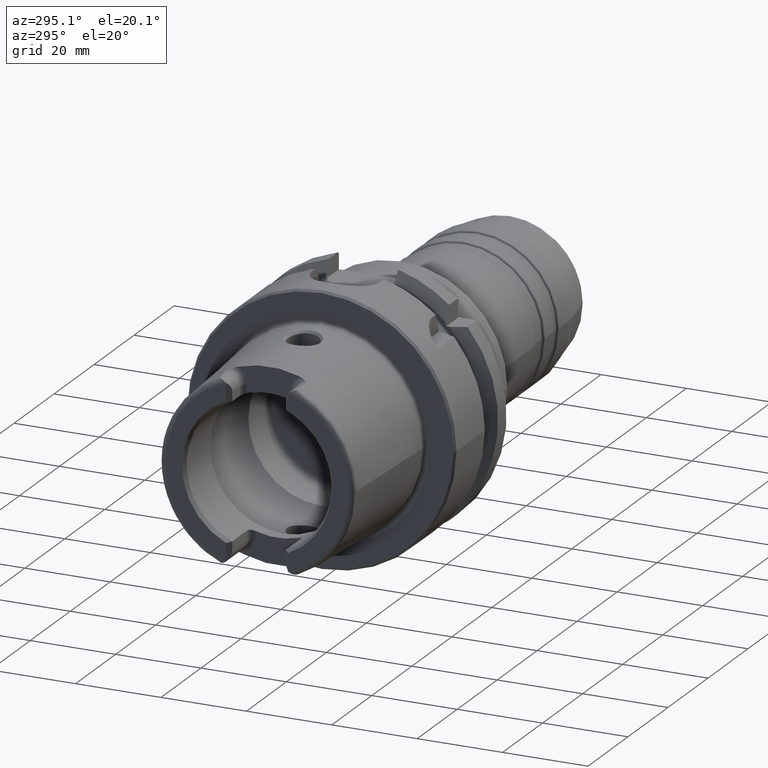
[diagram: clean part render]
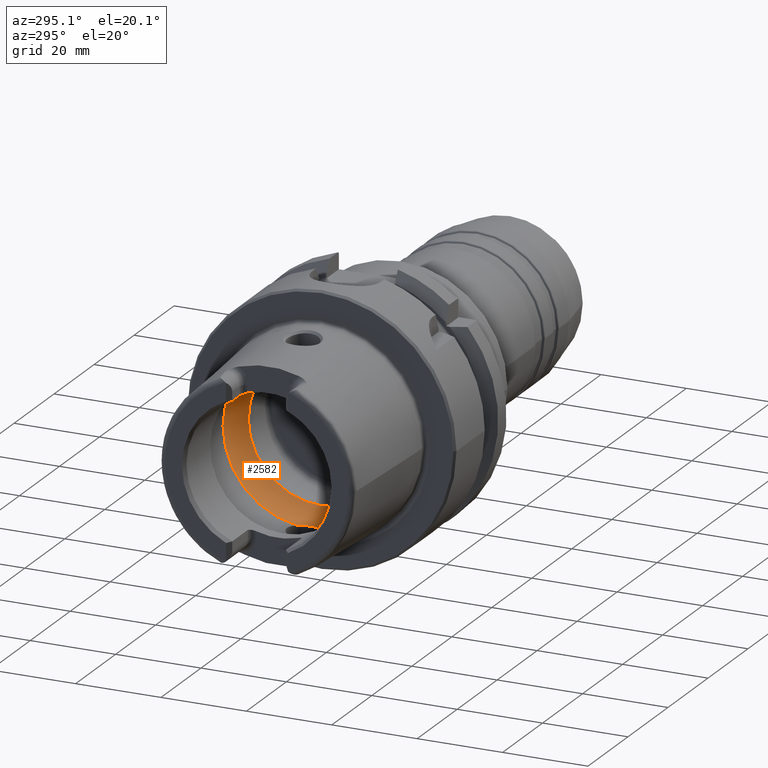
[diagram: same view with one face highlighted and labeled with its STEP entity id]
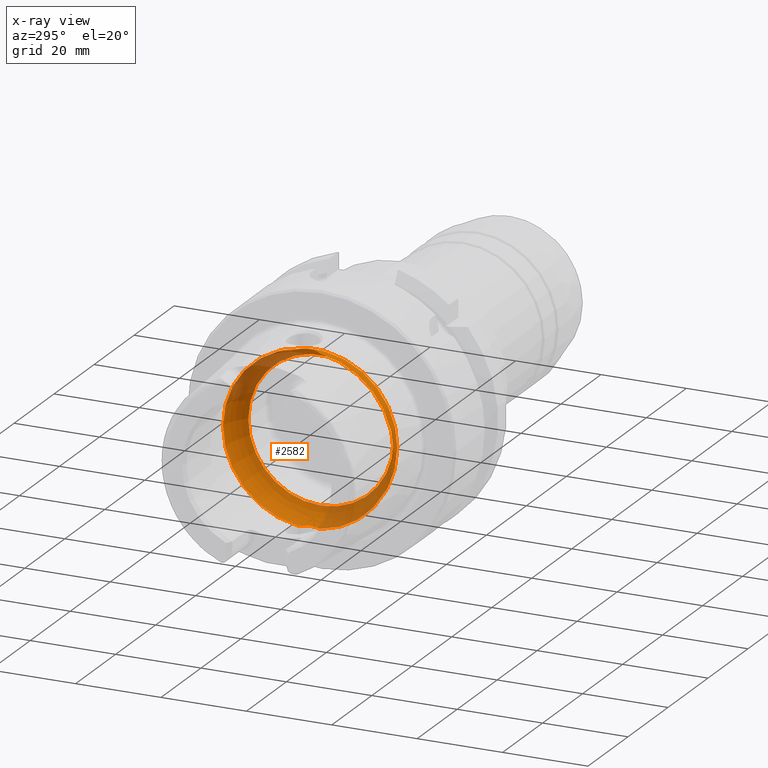
[diagram: x-ray of the same camera — body ghosted, the highlighted face saturated]
A machine part, auxiliary view. The second image highlights one B-rep face of the part: STEP entity #2582.
The next image is the same camera in x-ray: the body ghosted, the highlighted face saturated — about 29% of this face is hidden behind the body in this view.
In plain terms, the highlighted toroidal blend (fillet) surface has major radius 12 mm and minor (blend) radius 8 mm.
Its self-contained STEP definition (entity closure, byte-faithful):
#49=B_SPLINE_CURVE_WITH_KNOTS('',3,(#4640,#4641,#4642,#4643,#4644,#4645,
#4646,#4647,#4648,#4649,#4650,#4651),.UNSPECIFIED.,.F.,.F.,(4,2,2,2,2,4),
(-0.576707489926969,-0.455716402860838,-0.365368737325041,-0.32054974107213,
-0.288976283252766,-0.288398128098722),.UNSPECIFIED.);
#51=B_SPLINE_CURVE_WITH_KNOTS('',3,(#4684,#4685,#4686,#4687,#4688,#4689,
#4690,#4691,#4692,#4693),.UNSPECIFIED.,.F.,.F.,(4,2,2,2,4),(-0.288398128098722,
-0.257600392372142,-0.213718373510557,-0.137948403428905,0.),
 .UNSPECIFIED.);
#54=B_SPLINE_CURVE_WITH_KNOTS('',3,(#4809,#4810,#4811,#4812,#4813,#4814,
#4815,#4816,#4817,#4818,#4819,#4820),.UNSPECIFIED.,.F.,.F.,(4,2,2,2,2,4),
(-0.576707489926933,-0.455716402860807,-0.365368737325012,-0.320549741072106,
-0.288976283252744,-0.288398128098698),.UNSPECIFIED.);
#56=B_SPLINE_CURVE_WITH_KNOTS('',3,(#4853,#4854,#4855,#4856,#4857,#4858,
#4859,#4860,#4861,#4862),.UNSPECIFIED.,.F.,.F.,(4,2,2,2,4),(-0.288398128098698,
-0.257600392372128,-0.213718373510553,-0.137948403428902,0.),
 .UNSPECIFIED.);
#130=TOROIDAL_SURFACE('',#2876,12.,8.);
#255=FACE_OUTER_BOUND('',#396,.T.);
#396=EDGE_LOOP('',(#2028,#2029,#2030,#2031,#2032,#2033,#2034,#2035,#2036,
#2037,#2038,#2039));
#838=CIRCLE('',#2870,20.);
#842=CIRCLE('',#2874,20.);
#843=CIRCLE('',#2875,20.);
#844=CIRCLE('',#2877,17.);
#845=CIRCLE('',#2878,17.);
#846=CIRCLE('',#2879,17.);
#847=CIRCLE('',#2880,8.);
#1097=VERTEX_POINT('',#4637);
#1098=VERTEX_POINT('',#4639);
#1099=VERTEX_POINT('',#4652);
#1102=VERTEX_POINT('',#4807);
#1103=VERTEX_POINT('',#4808);
#1104=VERTEX_POINT('',#4821);
#1106=VERTEX_POINT('',#4867);
#1110=VERTEX_POINT('',#4879);
#1111=VERTEX_POINT('',#4880);
#1112=VERTEX_POINT('',#4882);
#1435=EDGE_CURVE('',#1098,#1097,#49,.T.);
#1437=EDGE_CURVE('',#1097,#1099,#51,.T.);
#1441=EDGE_CURVE('',#1102,#1103,#54,.T.);
#1443=EDGE_CURVE('',#1103,#1104,#56,.T.);
#1446=EDGE_CURVE('',#1106,#1102,#838,.T.);
#1451=EDGE_CURVE('',#1099,#1106,#842,.T.);
#1452=EDGE_CURVE('',#1104,#1098,#843,.T.);
#1453=EDGE_CURVE('',#1110,#1111,#844,.T.);
#1454=EDGE_CURVE('',#1112,#1110,#845,.T.);
#1455=EDGE_CURVE('',#1111,#1112,#846,.T.);
#1456=EDGE_CURVE('',#1111,#1097,#847,.T.);
#2028=ORIENTED_EDGE('',*,*,#1453,.F.);
#2029=ORIENTED_EDGE('',*,*,#1454,.F.);
#2030=ORIENTED_EDGE('',*,*,#1455,.F.);
#2031=ORIENTED_EDGE('',*,*,#1456,.T.);
#2032=ORIENTED_EDGE('',*,*,#1437,.T.);
#2033=ORIENTED_EDGE('',*,*,#1451,.T.);
#2034=ORIENTED_EDGE('',*,*,#1446,.T.);
#2035=ORIENTED_EDGE('',*,*,#1441,.T.);
#2036=ORIENTED_EDGE('',*,*,#1443,.T.);
#2037=ORIENTED_EDGE('',*,*,#1452,.T.);
#2038=ORIENTED_EDGE('',*,*,#1435,.T.);
#2039=ORIENTED_EDGE('',*,*,#1456,.F.);
#2582=ADVANCED_FACE('',(#255),#130,.F.);
#2870=AXIS2_PLACEMENT_3D('',#4868,#3478,#3479);
#2874=AXIS2_PLACEMENT_3D('',#4876,#3487,#3488);
#2875=AXIS2_PLACEMENT_3D('',#4877,#3489,#3490);
#2876=AXIS2_PLACEMENT_3D('',#4878,#3491,#3492);
#2877=AXIS2_PLACEMENT_3D('',#4881,#3493,#3494);
#2878=AXIS2_PLACEMENT_3D('',#4883,#3495,#3496);
#2879=AXIS2_PLACEMENT_3D('',#4884,#3497,#3498);
#2880=AXIS2_PLACEMENT_3D('',#4885,#3499,#3500);
#3478=DIRECTION('center_axis',(-1.,0.,0.));
#3479=DIRECTION('ref_axis',(0.,0.,1.));
#3487=DIRECTION('center_axis',(-1.,0.,0.));
#3488=DIRECTION('ref_axis',(0.,0.,1.));
#3489=DIRECTION('center_axis',(-1.,0.,0.));
#3490=DIRECTION('ref_axis',(0.,0.,1.));
#3491=DIRECTION('center_axis',(-1.,0.,0.));
#3492=DIRECTION('ref_axis',(0.,0.,1.));
#3493=DIRECTION('center_axis',(-1.,0.,0.));
#3494=DIRECTION('ref_axis',(0.,0.,1.));
#3495=DIRECTION('center_axis',(-1.,0.,0.));
#3496=DIRECTION('ref_axis',(0.,0.,1.));
#3497=DIRECTION('center_axis',(-1.,0.,0.));
#3498=DIRECTION('ref_axis',(0.,0.,1.));
#3499=DIRECTION('center_axis',(0.,1.,-1.22464679914735E-16));
#3500=DIRECTION('ref_axis',(0.,-1.22464679914735E-16,-1.));
#4637=CARTESIAN_POINT('',(-5.25,-3.6885832437187E-16,-19.9307944116589));
#4639=CARTESIAN_POINT('',(-6.3,2.60240273593461,-19.8299646999182));
#4640=CARTESIAN_POINT('Ctrl Pts',(-6.3,2.60240273593462,-19.8299646999182));
#4641=CARTESIAN_POINT('Ctrl Pts',(-6.02135700807983,2.31330986502881,-19.8679040553113));
#4642=CARTESIAN_POINT('Ctrl Pts',(-5.79033009489734,1.98064918550539,-19.890591169119));
#4643=CARTESIAN_POINT('Ctrl Pts',(-5.4867559347239,1.34543685595402,-19.9160762142355));
#4644=CARTESIAN_POINT('Ctrl Pts',(-5.39007954405641,1.05909527261747,-19.9223713998338));
#4645=CARTESIAN_POINT('Ctrl Pts',(-5.29825184053117,0.617966692523932,-19.9280498303184));
#4646=CARTESIAN_POINT('Ctrl Pts',(-5.27657003878054,0.469994704559193,-19.9292919985393));
#4647=CARTESIAN_POINT('Ctrl Pts',(-5.25476109400056,0.216252544174992,-19.9305312191434));
#4648=CARTESIAN_POINT('Ctrl Pts',(-5.25016676806113,0.111043433894874,-19.9307851133249));
#4649=CARTESIAN_POINT('Ctrl Pts',(-5.25000148602981,0.00385492015310341,
-19.9307943288045));
#4650=CARTESIAN_POINT('Ctrl Pts',(-5.25,0.00192745284672571,-19.9307944116589));
#4651=CARTESIAN_POINT('Ctrl Pts',(-5.25,-1.22655814364354E-15,-19.9307944116589));
#4652=CARTESIAN_POINT('',(-6.3,-2.60240273593461,-19.8299646999182));
#4684=CARTESIAN_POINT('Ctrl Pts',(-5.25,-1.21430643318376E-15,-19.9307944116589));
#4685=CARTESIAN_POINT('Ctrl Pts',(-5.25,-0.102673448439657,-19.9307944116589));
#4686=CARTESIAN_POINT('Ctrl Pts',(-5.25421684930313,-0.205305866402814,
-19.9305613545514));
#4687=CARTESIAN_POINT('Ctrl Pts',(-5.27464110625334,-0.453434827119473,
-19.9294026077432));
#4688=CARTESIAN_POINT('Ctrl Pts',(-5.29516467443997,-0.598409706843586,
-19.9282296486912));
#4689=CARTESIAN_POINT('Ctrl Pts',(-5.37406649070666,-0.989396372030705,
-19.9233785291009));
#4690=CARTESIAN_POINT('Ctrl Pts',(-5.44891810120348,-1.23128278857668,-19.9185486409462));
#4691=CARTESIAN_POINT('Ctrl Pts',(-5.72687568605109,-1.88691112132017,-19.8966847278005));
#4692=CARTESIAN_POINT('Ctrl Pts',(-5.98230637151864,-2.2727947221344,-19.8732210954731));
#4693=CARTESIAN_POINT('Ctrl Pts',(-6.3,-2.60240273593462,-19.8299646999182));
#4807=CARTESIAN_POINT('',(-6.3,-2.60240273593461,19.8299646999182));
#4808=CARTESIAN_POINT('',(-5.25,1.12300386496818E-15,19.9307944116589));
#4809=CARTESIAN_POINT('Ctrl Pts',(-6.3,-2.60240273593462,19.8299646999182));
#4810=CARTESIAN_POINT('Ctrl Pts',(-6.02135700807986,-2.31330986502884,19.8679040553113));
#4811=CARTESIAN_POINT('Ctrl Pts',(-5.79033009489738,-1.98064918550546,19.890591169119));
#4812=CARTESIAN_POINT('Ctrl Pts',(-5.48675593472392,-1.34543685595409,19.9160762142355));
#4813=CARTESIAN_POINT('Ctrl Pts',(-5.39007954405642,-1.05909527261754,19.9223713998338));
#4814=CARTESIAN_POINT('Ctrl Pts',(-5.29825184053117,-0.617966692523972,
19.9280498303184));
#4815=CARTESIAN_POINT('Ctrl Pts',(-5.27657003878054,-0.469994704559233,
19.9292919985393));
#4816=CARTESIAN_POINT('Ctrl Pts',(-5.25476109400056,-0.216252544174991,
19.9305312191434));
#4817=CARTESIAN_POINT('Ctrl Pts',(-5.25016676806113,-0.111043433894851,
19.9307851133249));
#4818=CARTESIAN_POINT('Ctrl Pts',(-5.2500014860298,-0.00385492015311072,
19.9307943288045));
#4819=CARTESIAN_POINT('Ctrl Pts',(-5.25,-0.00192745284672909,19.9307944116589));
#4820=CARTESIAN_POINT('Ctrl Pts',(-5.25,1.81500434093853E-15,19.9307944116589));
#4821=CARTESIAN_POINT('',(-6.3,2.60240273593461,19.8299646999182));
#4853=CARTESIAN_POINT('Ctrl Pts',(-5.25,1.85615411929518E-15,19.9307944116589));
#4854=CARTESIAN_POINT('Ctrl Pts',(-5.25,0.1026734484396,19.9307944116589));
#4855=CARTESIAN_POINT('Ctrl Pts',(-5.25421684930312,0.20530586640278,19.9305613545513));
#4856=CARTESIAN_POINT('Ctrl Pts',(-5.27464110625333,0.453434827119507,19.9294026077432));
#4857=CARTESIAN_POINT('Ctrl Pts',(-5.29516467443997,0.598409706843592,19.9282296486912));
#4858=CARTESIAN_POINT('Ctrl Pts',(-5.37406649070666,0.989396372030691,19.9233785291009));
#4859=CARTESIAN_POINT('Ctrl Pts',(-5.44891810120347,1.23128278857668,19.9185486409462));
#4860=CARTESIAN_POINT('Ctrl Pts',(-5.72687568605109,1.88691112132019,19.8966847278005));
#4861=CARTESIAN_POINT('Ctrl Pts',(-5.98230637151865,2.27279472213441,19.8732210954731));
#4862=CARTESIAN_POINT('Ctrl Pts',(-6.3,2.60240273593462,19.8299646999182));
#4867=CARTESIAN_POINT('',(-6.3,-20.,2.44929359829471E-15));
#4868=CARTESIAN_POINT('Origin',(-6.3,0.,0.));
#4876=CARTESIAN_POINT('Origin',(-6.3,0.,0.));
#4877=CARTESIAN_POINT('Origin',(-6.3,0.,0.));
#4878=CARTESIAN_POINT('Origin',(-6.3,0.,0.));
#4879=CARTESIAN_POINT('',(-0.055002001601602,17.,0.));
#4880=CARTESIAN_POINT('',(-0.0550020016016017,-2.0818995585505E-15,-17.));
#4881=CARTESIAN_POINT('Origin',(-0.0550020016016017,0.,0.));
#4882=CARTESIAN_POINT('',(-0.0550020016016017,-17.,2.0818995585505E-15));
#4883=CARTESIAN_POINT('Origin',(-0.0550020016016017,0.,0.));
#4884=CARTESIAN_POINT('Origin',(-0.0550020016016017,0.,0.));
#4885=CARTESIAN_POINT('Origin',(-6.3,-1.46957615897682E-15,-12.));